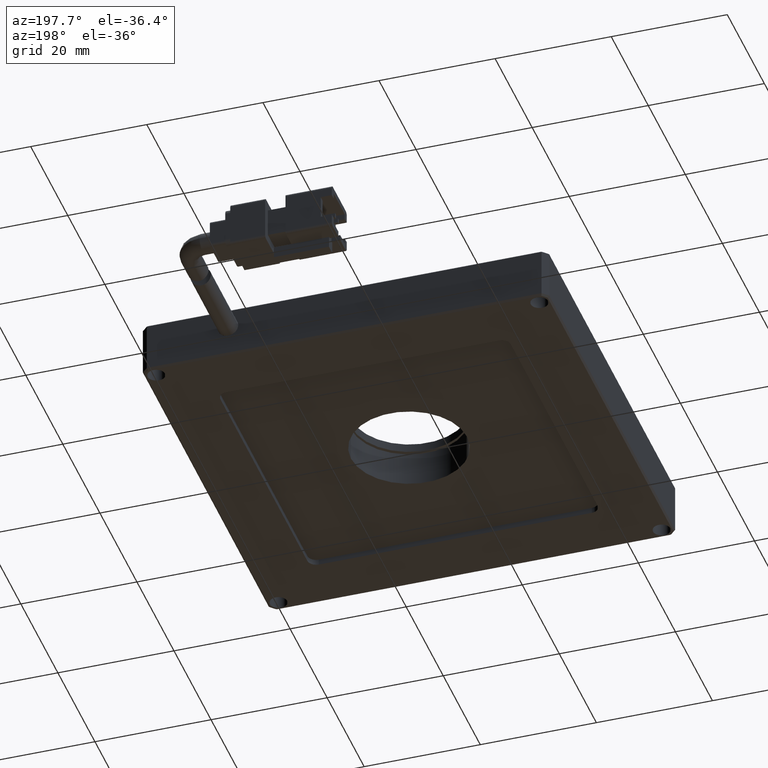
[diagram: clean part render]
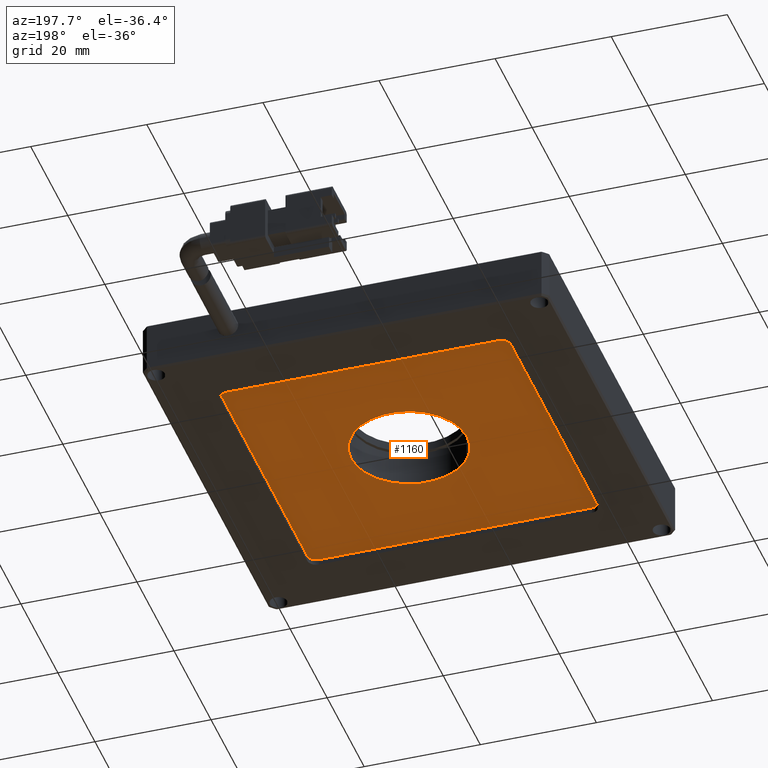
[diagram: same view with one face highlighted and labeled with its STEP entity id]
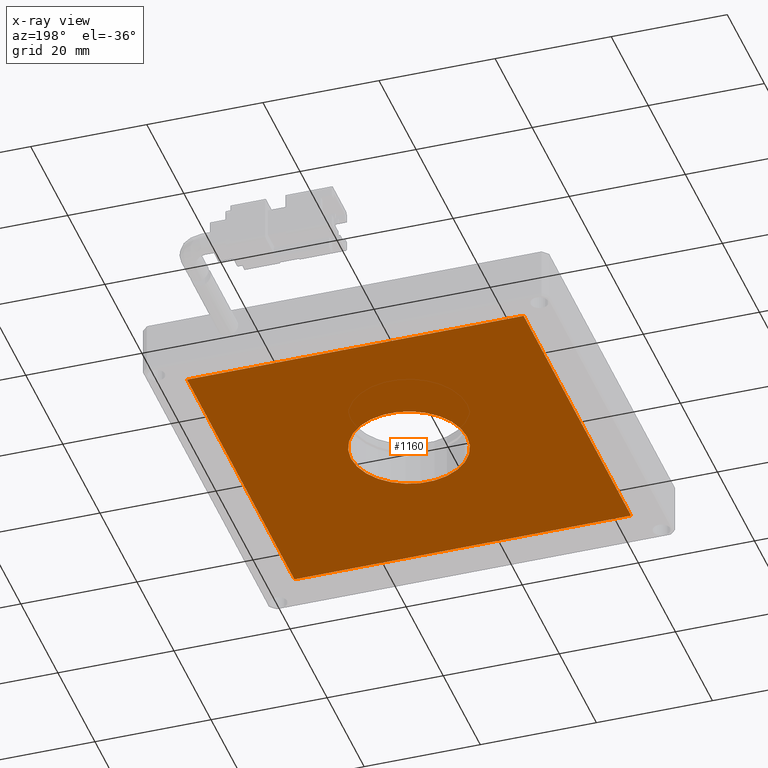
[diagram: x-ray of the same camera — body ghosted, the highlighted face saturated]
A machine part, auxiliary view. The second image highlights one B-rep face of the part: STEP entity #1160.
The next image is the same camera in x-ray: the body ghosted, the highlighted face saturated — about 0% of this face is hidden behind the body in this view.
In plain terms, the highlighted planar face has unit normal (0, -0, 1).
Its self-contained STEP definition (entity closure, byte-faithful):
#246 = DIRECTION ( 'NONE',  ( 1.000000000000000000, -5.981805089575197400E-017, 0.0000000000000000000 ) ) ;
#406 = DIRECTION ( 'NONE',  ( -0.0000000000000000000, 1.000000000000000000, 0.0000000000000000000 ) ) ;
#808 = DIRECTION ( 'NONE',  ( 1.000000000000000000, 0.0000000000000000000, 0.0000000000000000000 ) ) ;
#1160 = ADVANCED_FACE ( 'NONE', ( #3565, #16156 ), #6317, .F. ) ;
#1284 = DIRECTION ( 'NONE',  ( 1.000000000000000000, 0.0000000000000000000, -0.0000000000000000000 ) ) ;
#1695 = ORIENTED_EDGE ( 'NONE', *, *, #20952, .T. ) ;
#1708 = CARTESIAN_POINT ( 'NONE',  ( 16.53369289340099600, 8.535913705583775300, -2.000000000000000000 ) ) ;
#2145 = VERTEX_POINT ( 'NONE', #13853 ) ;
#2322 = VERTEX_POINT ( 'NONE', #14725 ) ;
#2348 = VECTOR ( 'NONE', #2983, 1000.000000000000000 ) ;
#2421 = LINE ( 'NONE', #1708, #6292 ) ;
#2913 = VERTEX_POINT ( 'NONE', #5155 ) ;
#2983 = DIRECTION ( 'NONE',  ( -0.0000000000000000000, -1.000000000000000000, 0.0000000000000000000 ) ) ;
#3221 = DIRECTION ( 'NONE',  ( 0.0000000000000000000, -0.0000000000000000000, 1.000000000000000000 ) ) ;
#3309 = CARTESIAN_POINT ( 'NONE',  ( -22.46630710659900400, 37.53591370558377300, -2.000000000000000000 ) ) ;
#3535 = EDGE_CURVE ( 'NONE', #14522, #7768, #13457, .T. ) ;
#3565 = FACE_OUTER_BOUND ( 'NONE', #7879, .T. ) ;
#3894 = AXIS2_PLACEMENT_3D ( 'NONE', #9776, #13425, #808 ) ;
#3960 = EDGE_CURVE ( 'NONE', #2913, #20624, #7243, .T. ) ;
#5155 = CARTESIAN_POINT ( 'NONE',  ( 16.53369289340099600, 66.53591370558378100, -2.000000000000000000 ) ) ;
#5250 = DIRECTION ( 'NONE',  ( 1.000000000000000000, 0.0000000000000000000, 0.0000000000000000000 ) ) ;
#5423 = ORIENTED_EDGE ( 'NONE', *, *, #13479, .T. ) ;
#5588 = AXIS2_PLACEMENT_3D ( 'NONE', #8469, #9971, #5250 ) ;
#5759 = VECTOR ( 'NONE', #406, 1000.000000000000000 ) ;
#5788 = LINE ( 'NONE', #9950, #19166 ) ;
#6292 = VECTOR ( 'NONE', #16294, 1000.000000000000000 ) ;
#6317 = PLANE ( 'NONE',  #13315 ) ;
#6724 = CARTESIAN_POINT ( 'NONE',  ( -41.46630710659900400, 8.535913705583775300, -2.000000000000000000 ) ) ;
#7195 = EDGE_CURVE ( 'NONE', #2322, #2913, #5788, .T. ) ;
#7243 = LINE ( 'NONE', #17573, #2348 ) ;
#7768 = VERTEX_POINT ( 'NONE', #21322 ) ;
#7879 = EDGE_LOOP ( 'NONE', ( #17913, #8979, #5423, #1695 ) ) ;
#8469 = CARTESIAN_POINT ( 'NONE',  ( -12.46630710659900400, 37.53591370558377300, -2.000000000000000000 ) ) ;
#8674 = CIRCLE ( 'NONE', #3894, 10.00000000000000000 ) ;
#8869 = ORIENTED_EDGE ( 'NONE', *, *, #3535, .T. ) ;
#8979 = ORIENTED_EDGE ( 'NONE', *, *, #3960, .T. ) ;
#9036 = EDGE_LOOP ( 'NONE', ( #16484, #8869 ) ) ;
#9489 = EDGE_CURVE ( 'NONE', #7768, #14522, #8674, .T. ) ;
#9776 = CARTESIAN_POINT ( 'NONE',  ( -12.46630710659900400, 37.53591370558377300, -2.000000000000000000 ) ) ;
#9950 = CARTESIAN_POINT ( 'NONE',  ( 16.53369289340099600, 66.53591370558378100, -2.000000000000000000 ) ) ;
#9971 = DIRECTION ( 'NONE',  ( -0.0000000000000000000, -0.0000000000000000000, 1.000000000000000000 ) ) ;
#13315 = AXIS2_PLACEMENT_3D ( 'NONE', #21143, #3221, #1284 ) ;
#13425 = DIRECTION ( 'NONE',  ( -0.0000000000000000000, -0.0000000000000000000, 1.000000000000000000 ) ) ;
#13457 = CIRCLE ( 'NONE', #5588, 10.00000000000000000 ) ;
#13479 = EDGE_CURVE ( 'NONE', #20624, #2145, #2421, .T. ) ;
#13853 = CARTESIAN_POINT ( 'NONE',  ( -41.46630710659900400, 8.535913705583775300, -2.000000000000000000 ) ) ;
#14522 = VERTEX_POINT ( 'NONE', #3309 ) ;
#14725 = CARTESIAN_POINT ( 'NONE',  ( -41.46630710659900400, 66.53591370558378100, -2.000000000000000000 ) ) ;
#16156 = FACE_BOUND ( 'NONE', #9036, .T. ) ;
#16294 = DIRECTION ( 'NONE',  ( -1.000000000000000000, 0.0000000000000000000, -0.0000000000000000000 ) ) ;
#16484 = ORIENTED_EDGE ( 'NONE', *, *, #9489, .T. ) ;
#17573 = CARTESIAN_POINT ( 'NONE',  ( 16.53369289340099600, 8.535913705583775300, -2.000000000000000000 ) ) ;
#17913 = ORIENTED_EDGE ( 'NONE', *, *, #7195, .T. ) ;
#18099 = LINE ( 'NONE', #6724, #5759 ) ;
#19153 = CARTESIAN_POINT ( 'NONE',  ( 16.53369289340099600, 8.535913705583775300, -2.000000000000000000 ) ) ;
#19166 = VECTOR ( 'NONE', #246, 1000.000000000000000 ) ;
#20624 = VERTEX_POINT ( 'NONE', #19153 ) ;
#20952 = EDGE_CURVE ( 'NONE', #2145, #2322, #18099, .T. ) ;
#21143 = CARTESIAN_POINT ( 'NONE',  ( -41.46630710659900400, 66.53591370558378100, -2.000000000000000000 ) ) ;
#21322 = CARTESIAN_POINT ( 'NONE',  ( -2.466307106599003000, 37.53591370558377300, -2.000000000000000000 ) ) ;